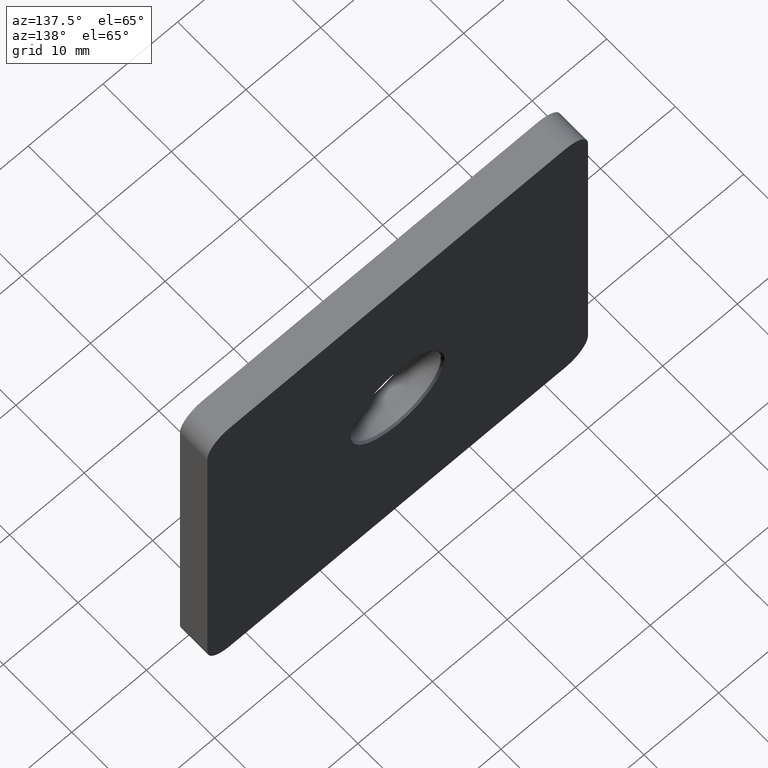
[diagram: clean part render]
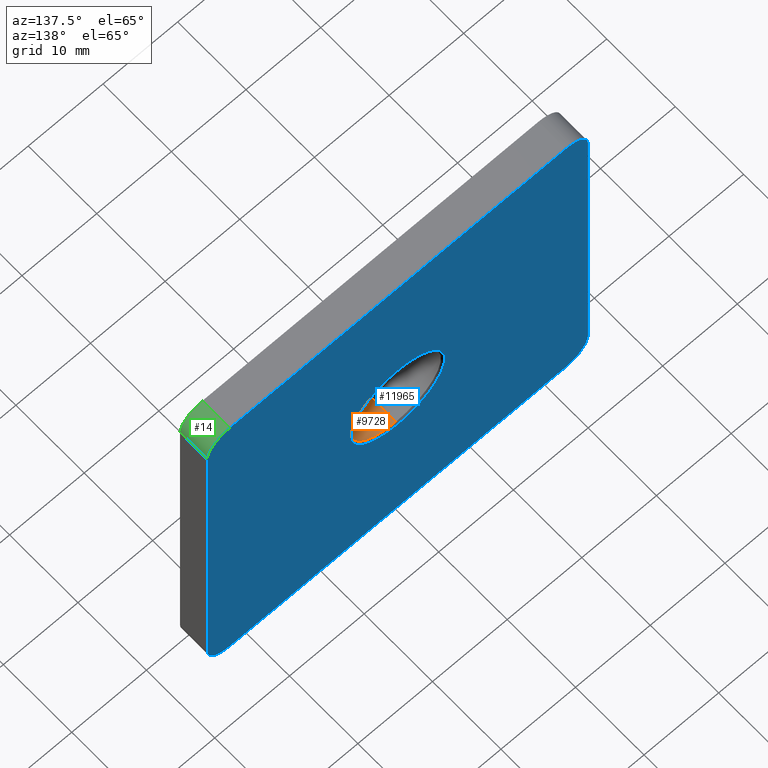
[diagram: same view with three faces highlighted in distinct colors, each labeled with its STEP entity id]
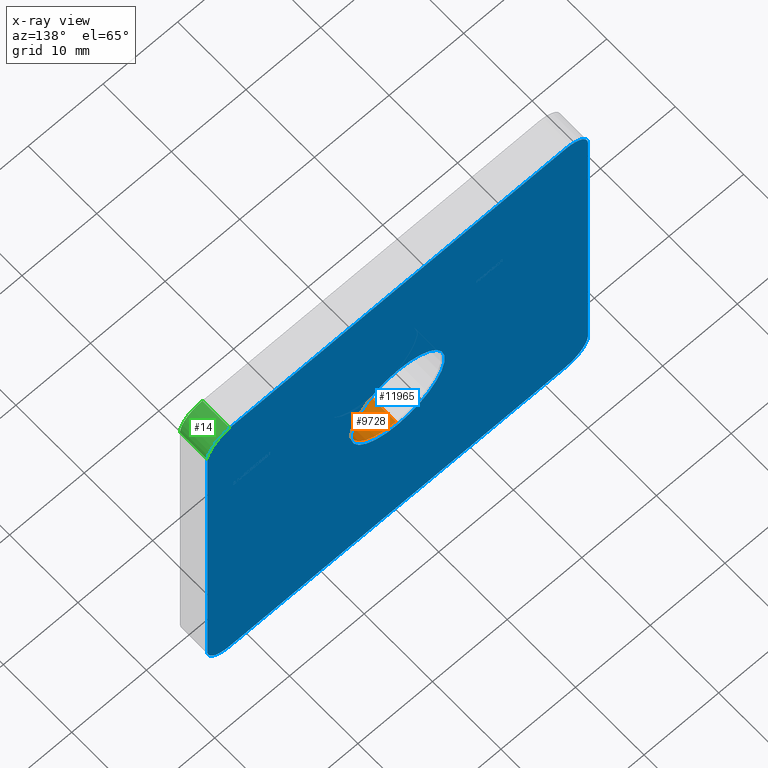
[diagram: x-ray of the same camera — body ghosted, the three highlighted faces saturated]
A machine part, auxiliary view with three faces highlighted in distinct colors.
The next image is the same camera in x-ray (body ghosted, the three faces saturated) — at least one of them is partly hidden behind the body in this view.
Their STEP definitions:

[orange] entity #9728 — the highlighted cylindrical surface (partial cylindrical patch) has radius 6.05 mm, axis along (-0, 1, -0).
#1059 = ORIENTED_EDGE ( 'NONE', *, *, #1942, .T. ) ;
#1345 = CARTESIAN_POINT ( 'NONE',  ( 7.409113134841486500E-016, 0.2499999999999932800, -6.049999999999999800 ) ) ;
#1891 = EDGE_LOOP ( 'NONE', ( #6637, #8905, #1059, #13898 ) ) ;
#1942 = EDGE_CURVE ( 'NONE', #8501, #12154, #13261, .T. ) ;
#1985 = DIRECTION ( 'NONE',  ( 0.0000000000000000000, 1.000000000000000000, 0.0000000000000000000 ) ) ;
#2046 = EDGE_CURVE ( 'NONE', #5713, #12166, #10963, .T. ) ;
#3023 = DIRECTION ( 'NONE',  ( 0.0000000000000000000, 0.0000000000000000000, 1.000000000000000000 ) ) ;
#3089 = AXIS2_PLACEMENT_3D ( 'NONE', #6807, #5475, #3023 ) ;
#4201 = DIRECTION ( 'NONE',  ( 0.0000000000000000000, 0.0000000000000000000, 1.000000000000000000 ) ) ;
#4250 = DIRECTION ( 'NONE',  ( -0.0000000000000000000, 1.000000000000000000, -0.0000000000000000000 ) ) ;
#5324 = DIRECTION ( 'NONE',  ( -0.0000000000000000000, 1.000000000000000000, -0.0000000000000000000 ) ) ;
#5475 = DIRECTION ( 'NONE',  ( -0.0000000000000000000, -1.000000000000000000, -0.0000000000000000000 ) ) ;
#5617 = DIRECTION ( 'NONE',  ( 0.0000000000000000000, 0.0000000000000000000, 1.000000000000000000 ) ) ;
#5713 = VERTEX_POINT ( 'NONE', #1345 ) ;
#6637 = ORIENTED_EDGE ( 'NONE', *, *, #2046, .F. ) ;
#6807 = CARTESIAN_POINT ( 'NONE',  ( 0.0000000000000000000, 0.2499999999999932800, 0.0000000000000000000 ) ) ;
#8073 = CARTESIAN_POINT ( 'NONE',  ( 0.0000000000000000000, 0.2499999999999932800, 6.049999999999999800 ) ) ;
#8501 = VERTEX_POINT ( 'NONE', #8073 ) ;
#8604 = CIRCLE ( 'NONE', #3089, 6.049999999999999800 ) ;
#8676 = VECTOR ( 'NONE', #5324, 1000.000000000000000 ) ;
#8905 = ORIENTED_EDGE ( 'NONE', *, *, #11900, .T. ) ;
#9085 = CARTESIAN_POINT ( 'NONE',  ( 0.0000000000000000000, 0.0000000000000000000, 0.0000000000000000000 ) ) ;
#9185 = CARTESIAN_POINT ( 'NONE',  ( 0.0000000000000000000, 0.0000000000000000000, 6.049999999999999800 ) ) ;
#9728 = ADVANCED_FACE ( 'NONE', ( #15699 ), #10503, .F. ) ;
#9847 = CARTESIAN_POINT ( 'NONE',  ( 7.409113134841486500E-016, 3.750000000000000000, -6.049999999999999800 ) ) ;
#10503 = CYLINDRICAL_SURFACE ( 'NONE', #13017, 6.049999999999999800 ) ;
#10963 = LINE ( 'NONE', #14012, #15370 ) ;
#11129 = CARTESIAN_POINT ( 'NONE',  ( 0.0000000000000000000, 3.750000000000000000, 6.049999999999999800 ) ) ;
#11707 = AXIS2_PLACEMENT_3D ( 'NONE', #14129, #1985, #5617 ) ;
#11900 = EDGE_CURVE ( 'NONE', #5713, #8501, #8604, .T. ) ;
#12154 = VERTEX_POINT ( 'NONE', #11129 ) ;
#12166 = VERTEX_POINT ( 'NONE', #9847 ) ;
#12583 = CIRCLE ( 'NONE', #11707, 6.049999999999999800 ) ;
#13017 = AXIS2_PLACEMENT_3D ( 'NONE', #9085, #4250, #4201 ) ;
#13261 = LINE ( 'NONE', #9185, #8676 ) ;
#13740 = EDGE_CURVE ( 'NONE', #12154, #12166, #12583, .T. ) ;
#13898 = ORIENTED_EDGE ( 'NONE', *, *, #13740, .T. ) ;
#14012 = CARTESIAN_POINT ( 'NONE',  ( 7.409113134841486500E-016, 0.0000000000000000000, -6.049999999999999800 ) ) ;
#14129 = CARTESIAN_POINT ( 'NONE',  ( 0.0000000000000000000, 3.750000000000000000, 0.0000000000000000000 ) ) ;
#14964 = DIRECTION ( 'NONE',  ( -0.0000000000000000000, 1.000000000000000000, -0.0000000000000000000 ) ) ;
#15370 = VECTOR ( 'NONE', #14964, 1000.000000000000000 ) ;
#15699 = FACE_OUTER_BOUND ( 'NONE', #1891, .T. ) ;

[blue] entity #11965 — the highlighted planar face has unit normal (0, 1, 0).
#87 = CARTESIAN_POINT ( 'NONE',  ( -22.50000000000000400, 4.000000000000000000, -22.49999999999999600 ) ) ;
#144 = CARTESIAN_POINT ( 'NONE',  ( -25.49999999999999600, 4.000000000000000000, 25.49999999999999600 ) ) ;
#337 = AXIS2_PLACEMENT_3D ( 'NONE', #3347, #8268, #13171 ) ;
#350 = CARTESIAN_POINT ( 'NONE',  ( 22.50000000000000700, 4.000000000000000000, 25.49999999999999600 ) ) ;
#572 = LINE ( 'NONE', #3877, #4188 ) ;
#750 = EDGE_CURVE ( 'NONE', #10056, #11414, #2006, .T. ) ;
#1485 = DIRECTION ( 'NONE',  ( -1.000000000000000000, -0.0000000000000000000, -0.0000000000000000000 ) ) ;
#1527 = CIRCLE ( 'NONE', #10552, 2.999999999999999100 ) ;
#1621 = ORIENTED_EDGE ( 'NONE', *, *, #9114, .T. ) ;
#2006 = LINE ( 'NONE', #144, #6017 ) ;
#2626 = CARTESIAN_POINT ( 'NONE',  ( -25.50000000000000400, 4.000000000000000000, -25.49999999999999600 ) ) ;
#2696 = DIRECTION ( 'NONE',  ( 0.0000000000000000000, 0.0000000000000000000, 1.000000000000000000 ) ) ;
#2776 = AXIS2_PLACEMENT_3D ( 'NONE', #13329, #14573, #7238 ) ;
#2867 = ORIENTED_EDGE ( 'NONE', *, *, #13475, .T. ) ;
#3084 = CIRCLE ( 'NONE', #14637, 2.999999999999999100 ) ;
#3245 = LINE ( 'NONE', #13893, #6285 ) ;
#3347 = CARTESIAN_POINT ( 'NONE',  ( 0.0000000000000000000, 4.000000000000000000, 0.0000000000000000000 ) ) ;
#3484 = CARTESIAN_POINT ( 'NONE',  ( 22.50000000000000400, 4.000000000000000000, 22.49999999999999300 ) ) ;
#3498 = PLANE ( 'NONE',  #337 ) ;
#3563 = ORIENTED_EDGE ( 'NONE', *, *, #8698, .T. ) ;
#3753 = CIRCLE ( 'NONE', #4520, 6.300000000000006900 ) ;
#3877 = CARTESIAN_POINT ( 'NONE',  ( 25.49999999999999600, 4.000000000000000000, -25.49999999999999600 ) ) ;
#4188 = VECTOR ( 'NONE', #10410, 1000.000000000000000 ) ;
#4292 = AXIS2_PLACEMENT_3D ( 'NONE', #3484, #12033, #4844 ) ;
#4300 = CARTESIAN_POINT ( 'NONE',  ( -22.50000000000000400, 4.000000000000000000, -25.49999999999999600 ) ) ;
#4340 = ORIENTED_EDGE ( 'NONE', *, *, #11263, .T. ) ;
#4520 = AXIS2_PLACEMENT_3D ( 'NONE', #9007, #12574, #13767 ) ;
#4757 = CARTESIAN_POINT ( 'NONE',  ( 25.50000000000000400, 4.000000000000000000, 22.49999999999999300 ) ) ;
#4758 = CARTESIAN_POINT ( 'NONE',  ( 22.50000000000000000, 4.000000000000000000, -22.49999999999999600 ) ) ;
#4844 = DIRECTION ( 'NONE',  ( 0.0000000000000000000, 0.0000000000000000000, 1.000000000000000000 ) ) ;
#4953 = CIRCLE ( 'NONE', #4292, 2.999999999999999100 ) ;
#5269 = EDGE_CURVE ( 'NONE', #12847, #8376, #3084, .T. ) ;
#5533 = FACE_BOUND ( 'NONE', #7170, .T. ) ;
#5738 = FACE_OUTER_BOUND ( 'NONE', #8951, .T. ) ;
#6017 = VECTOR ( 'NONE', #7404, 1000.000000000000000 ) ;
#6285 = VECTOR ( 'NONE', #1485, 1000.000000000000000 ) ;
#6649 = VERTEX_POINT ( 'NONE', #11938 ) ;
#6656 = EDGE_CURVE ( 'NONE', #11414, #11301, #4953, .T. ) ;
#6852 = CIRCLE ( 'NONE', #11194, 2.999999999999999100 ) ;
#6944 = CARTESIAN_POINT ( 'NONE',  ( -22.49999999999999600, 4.000000000000000000, 25.49999999999999600 ) ) ;
#7137 = DIRECTION ( 'NONE',  ( 0.0000000000000000000, 1.000000000000000000, 0.0000000000000000000 ) ) ;
#7170 = EDGE_LOOP ( 'NONE', ( #13350, #4340 ) ) ;
#7177 = ORIENTED_EDGE ( 'NONE', *, *, #5269, .T. ) ;
#7238 = DIRECTION ( 'NONE',  ( 0.0000000000000000000, 0.0000000000000000000, 1.000000000000000000 ) ) ;
#7404 = DIRECTION ( 'NONE',  ( 1.000000000000000000, 0.0000000000000000000, 0.0000000000000000000 ) ) ;
#7687 = CARTESIAN_POINT ( 'NONE',  ( 0.0000000000000000000, 4.000000000000000000, 6.300000000000006900 ) ) ;
#8009 = CARTESIAN_POINT ( 'NONE',  ( -22.49999999999999600, 4.000000000000000000, 22.49999999999999600 ) ) ;
#8268 = DIRECTION ( 'NONE',  ( 0.0000000000000000000, 1.000000000000000000, 0.0000000000000000000 ) ) ;
#8376 = VERTEX_POINT ( 'NONE', #10864 ) ;
#8568 = CIRCLE ( 'NONE', #2776, 6.300000000000006900 ) ;
#8636 = DIRECTION ( 'NONE',  ( 0.0000000000000000000, 1.000000000000000000, 0.0000000000000000000 ) ) ;
#8698 = EDGE_CURVE ( 'NONE', #11301, #13501, #572, .T. ) ;
#8835 = DIRECTION ( 'NONE',  ( 1.360567432138672600E-016, 0.0000000000000000000, 1.000000000000000000 ) ) ;
#8908 = EDGE_CURVE ( 'NONE', #6649, #10056, #1527, .T. ) ;
#8951 = EDGE_LOOP ( 'NONE', ( #1621, #9873, #14214, #12657, #3563, #2867, #10187, #7177 ) ) ;
#9007 = CARTESIAN_POINT ( 'NONE',  ( 0.0000000000000000000, 4.000000000000000000, 0.0000000000000000000 ) ) ;
#9114 = EDGE_CURVE ( 'NONE', #8376, #6649, #11654, .T. ) ;
#9751 = CARTESIAN_POINT ( 'NONE',  ( 25.49999999999999600, 4.000000000000000000, -22.49999999999999600 ) ) ;
#9873 = ORIENTED_EDGE ( 'NONE', *, *, #8908, .T. ) ;
#9915 = VERTEX_POINT ( 'NONE', #7687 ) ;
#10056 = VERTEX_POINT ( 'NONE', #6944 ) ;
#10187 = ORIENTED_EDGE ( 'NONE', *, *, #12798, .T. ) ;
#10410 = DIRECTION ( 'NONE',  ( -1.360567432138672600E-016, -0.0000000000000000000, -1.000000000000000000 ) ) ;
#10552 = AXIS2_PLACEMENT_3D ( 'NONE', #8009, #14105, #15508 ) ;
#10864 = CARTESIAN_POINT ( 'NONE',  ( -25.50000000000000400, 4.000000000000000000, -22.49999999999999600 ) ) ;
#11194 = AXIS2_PLACEMENT_3D ( 'NONE', #4758, #7137, #13332 ) ;
#11263 = EDGE_CURVE ( 'NONE', #12735, #9915, #8568, .T. ) ;
#11301 = VERTEX_POINT ( 'NONE', #4757 ) ;
#11381 = CARTESIAN_POINT ( 'NONE',  ( 7.715274834628334300E-016, 4.000000000000000000, -6.300000000000006900 ) ) ;
#11392 = VERTEX_POINT ( 'NONE', #12353 ) ;
#11414 = VERTEX_POINT ( 'NONE', #350 ) ;
#11654 = LINE ( 'NONE', #2626, #11852 ) ;
#11852 = VECTOR ( 'NONE', #8835, 1000.000000000000000 ) ;
#11938 = CARTESIAN_POINT ( 'NONE',  ( -25.49999999999999600, 4.000000000000000000, 22.49999999999999300 ) ) ;
#11965 = ADVANCED_FACE ( 'NONE', ( #5533, #5738 ), #3498, .T. ) ;
#12033 = DIRECTION ( 'NONE',  ( 0.0000000000000000000, 1.000000000000000000, 0.0000000000000000000 ) ) ;
#12353 = CARTESIAN_POINT ( 'NONE',  ( 22.50000000000000000, 4.000000000000000000, -25.49999999999999600 ) ) ;
#12574 = DIRECTION ( 'NONE',  ( -0.0000000000000000000, -1.000000000000000000, -0.0000000000000000000 ) ) ;
#12657 = ORIENTED_EDGE ( 'NONE', *, *, #6656, .T. ) ;
#12735 = VERTEX_POINT ( 'NONE', #11381 ) ;
#12798 = EDGE_CURVE ( 'NONE', #11392, #12847, #3245, .T. ) ;
#12847 = VERTEX_POINT ( 'NONE', #4300 ) ;
#13171 = DIRECTION ( 'NONE',  ( 0.0000000000000000000, -0.0000000000000000000, 1.000000000000000000 ) ) ;
#13329 = CARTESIAN_POINT ( 'NONE',  ( 0.0000000000000000000, 4.000000000000000000, 0.0000000000000000000 ) ) ;
#13332 = DIRECTION ( 'NONE',  ( 0.0000000000000000000, 0.0000000000000000000, 1.000000000000000000 ) ) ;
#13350 = ORIENTED_EDGE ( 'NONE', *, *, #15544, .T. ) ;
#13475 = EDGE_CURVE ( 'NONE', #13501, #11392, #6852, .T. ) ;
#13501 = VERTEX_POINT ( 'NONE', #9751 ) ;
#13767 = DIRECTION ( 'NONE',  ( 0.0000000000000000000, 0.0000000000000000000, 1.000000000000000000 ) ) ;
#13893 = CARTESIAN_POINT ( 'NONE',  ( -25.50000000000000400, 4.000000000000000000, -25.49999999999999600 ) ) ;
#14105 = DIRECTION ( 'NONE',  ( 0.0000000000000000000, 1.000000000000000000, 0.0000000000000000000 ) ) ;
#14214 = ORIENTED_EDGE ( 'NONE', *, *, #750, .T. ) ;
#14573 = DIRECTION ( 'NONE',  ( -0.0000000000000000000, -1.000000000000000000, -0.0000000000000000000 ) ) ;
#14637 = AXIS2_PLACEMENT_3D ( 'NONE', #87, #8636, #2696 ) ;
#15508 = DIRECTION ( 'NONE',  ( 0.0000000000000000000, 0.0000000000000000000, 1.000000000000000000 ) ) ;
#15544 = EDGE_CURVE ( 'NONE', #9915, #12735, #3753, .T. ) ;

[green] entity #14 — the highlighted cylindrical surface (edge-blend (fillet) strip) has radius 3 mm, axis along (0, -1, 0).
#14 = ADVANCED_FACE ( 'NONE', ( #3536 ), #11956, .T. ) ;
#73 = ORIENTED_EDGE ( 'NONE', *, *, #6656, .F. ) ;
#350 = CARTESIAN_POINT ( 'NONE',  ( 22.50000000000000700, 4.000000000000000000, 25.49999999999999600 ) ) ;
#578 = DIRECTION ( 'NONE',  ( -0.0000000000000000000, 1.000000000000000000, -0.0000000000000000000 ) ) ;
#1486 = CARTESIAN_POINT ( 'NONE',  ( 22.50000000000000700, 0.0000000000000000000, 25.49999999999999600 ) ) ;
#3181 = EDGE_CURVE ( 'NONE', #3247, #11414, #15566, .T. ) ;
#3247 = VERTEX_POINT ( 'NONE', #1486 ) ;
#3484 = CARTESIAN_POINT ( 'NONE',  ( 22.50000000000000400, 4.000000000000000000, 22.49999999999999300 ) ) ;
#3536 = FACE_OUTER_BOUND ( 'NONE', #12586, .T. ) ;
#3916 = ORIENTED_EDGE ( 'NONE', *, *, #10546, .F. ) ;
#4054 = AXIS2_PLACEMENT_3D ( 'NONE', #5395, #15187, #4215 ) ;
#4215 = DIRECTION ( 'NONE',  ( 0.0000000000000000000, 0.0000000000000000000, -1.000000000000000000 ) ) ;
#4292 = AXIS2_PLACEMENT_3D ( 'NONE', #3484, #12033, #4844 ) ;
#4757 = CARTESIAN_POINT ( 'NONE',  ( 25.50000000000000400, 4.000000000000000000, 22.49999999999999300 ) ) ;
#4844 = DIRECTION ( 'NONE',  ( 0.0000000000000000000, 0.0000000000000000000, 1.000000000000000000 ) ) ;
#4953 = CIRCLE ( 'NONE', #4292, 2.999999999999999100 ) ;
#5145 = DIRECTION ( 'NONE',  ( -0.0000000000000000000, -1.000000000000000000, -0.0000000000000000000 ) ) ;
#5395 = CARTESIAN_POINT ( 'NONE',  ( 22.50000000000000400, 4.000000000000000000, 22.49999999999999300 ) ) ;
#6656 = EDGE_CURVE ( 'NONE', #11414, #11301, #4953, .T. ) ;
#6949 = CARTESIAN_POINT ( 'NONE',  ( 25.50000000000000400, 0.0000000000000000000, 22.49999999999999300 ) ) ;
#7325 = VECTOR ( 'NONE', #578, 1000.000000000000000 ) ;
#8000 = AXIS2_PLACEMENT_3D ( 'NONE', #13722, #5145, #12587 ) ;
#9381 = ORIENTED_EDGE ( 'NONE', *, *, #13108, .F. ) ;
#9548 = CIRCLE ( 'NONE', #8000, 2.999999999999999100 ) ;
#10546 = EDGE_CURVE ( 'NONE', #11301, #15474, #10873, .T. ) ;
#10873 = LINE ( 'NONE', #13177, #14892 ) ;
#11273 = ORIENTED_EDGE ( 'NONE', *, *, #3181, .F. ) ;
#11301 = VERTEX_POINT ( 'NONE', #4757 ) ;
#11414 = VERTEX_POINT ( 'NONE', #350 ) ;
#11956 = CYLINDRICAL_SURFACE ( 'NONE', #4054, 2.999999999999999100 ) ;
#12033 = DIRECTION ( 'NONE',  ( 0.0000000000000000000, 1.000000000000000000, 0.0000000000000000000 ) ) ;
#12586 = EDGE_LOOP ( 'NONE', ( #73, #11273, #9381, #3916 ) ) ;
#12587 = DIRECTION ( 'NONE',  ( -1.156482317317871700E-015, 0.0000000000000000000, 1.000000000000000000 ) ) ;
#12650 = CARTESIAN_POINT ( 'NONE',  ( 22.50000000000000700, 4.000000000000000000, 25.49999999999999600 ) ) ;
#13108 = EDGE_CURVE ( 'NONE', #15474, #3247, #9548, .T. ) ;
#13177 = CARTESIAN_POINT ( 'NONE',  ( 25.50000000000000400, 4.000000000000000000, 22.49999999999999300 ) ) ;
#13722 = CARTESIAN_POINT ( 'NONE',  ( 22.50000000000000400, 0.0000000000000000000, 22.49999999999999300 ) ) ;
#14422 = DIRECTION ( 'NONE',  ( 0.0000000000000000000, -1.000000000000000000, 0.0000000000000000000 ) ) ;
#14892 = VECTOR ( 'NONE', #14422, 1000.000000000000000 ) ;
#15187 = DIRECTION ( 'NONE',  ( 0.0000000000000000000, -1.000000000000000000, 0.0000000000000000000 ) ) ;
#15474 = VERTEX_POINT ( 'NONE', #6949 ) ;
#15566 = LINE ( 'NONE', #12650, #7325 ) ;